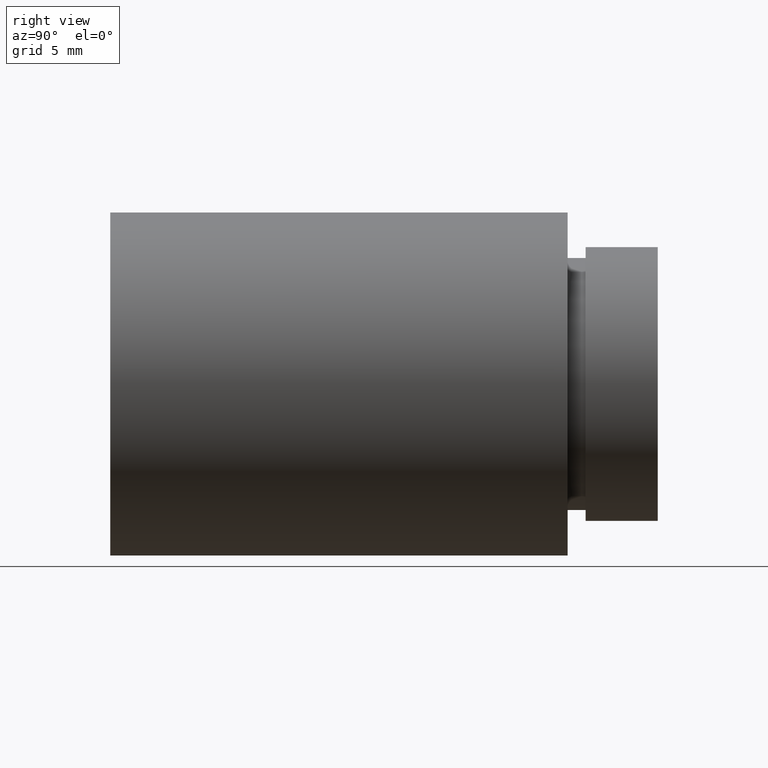
[diagram: clean part render]
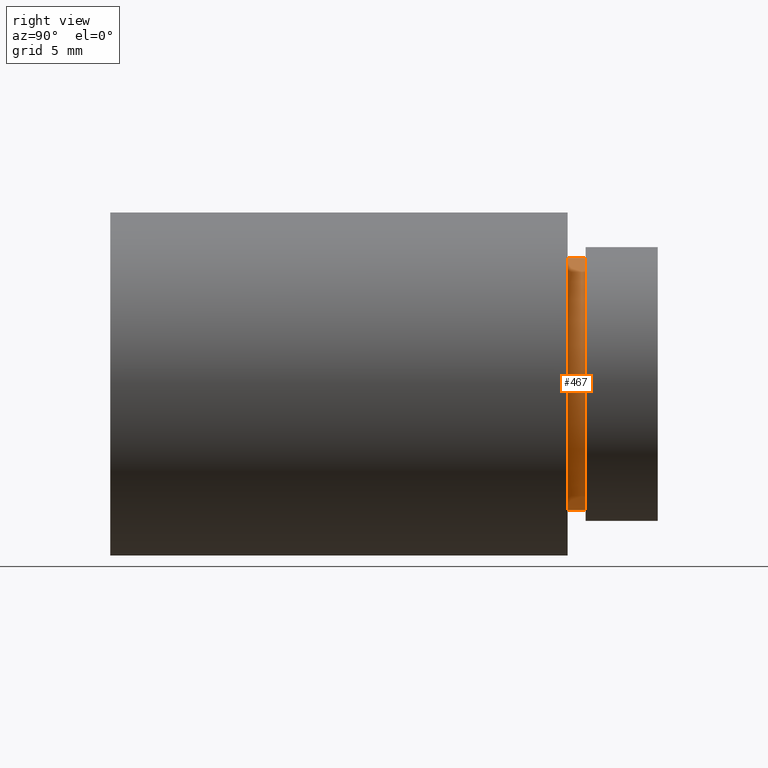
[diagram: same view with one face highlighted and labeled with its STEP entity id]
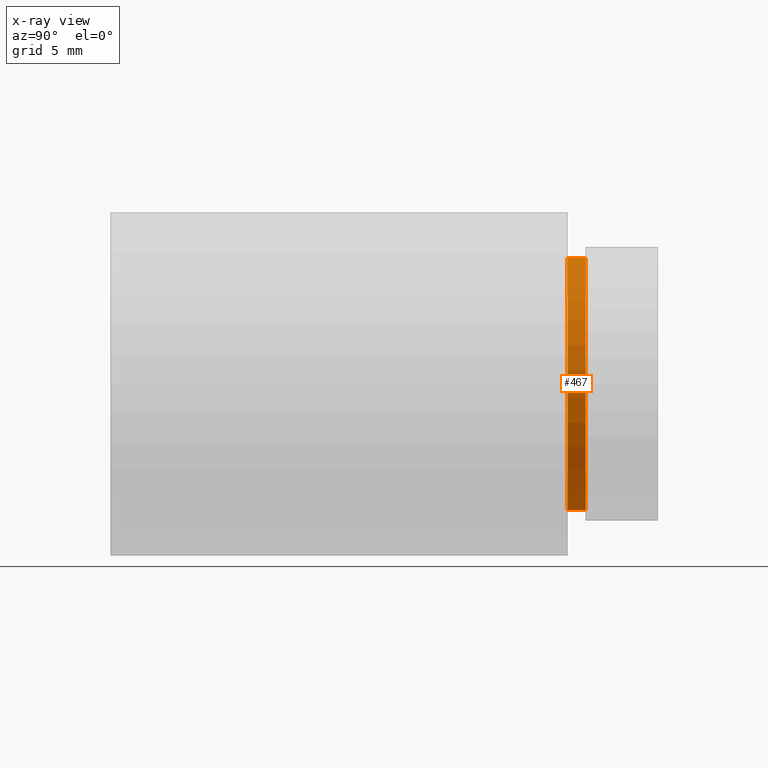
[diagram: x-ray of the same camera — body ghosted, the highlighted face saturated]
A machine part, right view. The second image highlights one B-rep face of the part: STEP entity #467.
The next image is the same camera in x-ray: the body ghosted, the highlighted face saturated — about 0% of this face is hidden behind the body in this view.
In plain terms, the highlighted cylindrical surface (partial cylindrical patch) has radius 7 mm, axis along (-0, 1, -0).
Its self-contained STEP definition (entity closure, byte-faithful):
#1 = ORIENTED_EDGE ( 'NONE', *, *, #303, .T. ) ;
#4 = VECTOR ( 'NONE', #300, 1000.000000000000000 ) ;
#27 = AXIS2_PLACEMENT_3D ( 'NONE', #420, #139, #514 ) ;
#68 = AXIS2_PLACEMENT_3D ( 'NONE', #559, #183, #564 ) ;
#71 = EDGE_CURVE ( 'NONE', #258, #616, #601, .T. ) ;
#102 = ORIENTED_EDGE ( 'NONE', *, *, #71, .T. ) ;
#114 = EDGE_CURVE ( 'NONE', #204, #132, #317, .T. ) ;
#128 = CARTESIAN_POINT ( 'NONE',  ( 0.0000000000000000000, 25.39999999999997700, 7.000000000000015100 ) ) ;
#132 = VERTEX_POINT ( 'NONE', #533 ) ;
#139 = DIRECTION ( 'NONE',  ( -0.0000000000000000000, 1.000000000000000000, -0.0000000000000000000 ) ) ;
#162 = ORIENTED_EDGE ( 'NONE', *, *, #269, .F. ) ;
#183 = DIRECTION ( 'NONE',  ( -0.0000000000000000000, 1.000000000000000000, -0.0000000000000000000 ) ) ;
#193 = CARTESIAN_POINT ( 'NONE',  ( 8.572527594031490900E-016, 26.39999999999997700, -7.000000000000015100 ) ) ;
#204 = VERTEX_POINT ( 'NONE', #128 ) ;
#245 = CIRCLE ( 'NONE', #27, 7.000000000000015100 ) ;
#246 = VECTOR ( 'NONE', #400, 1000.000000000000000 ) ;
#258 = VERTEX_POINT ( 'NONE', #547 ) ;
#269 = EDGE_CURVE ( 'NONE', #132, #616, #245, .T. ) ;
#271 = ORIENTED_EDGE ( 'NONE', *, *, #114, .F. ) ;
#284 = DIRECTION ( 'NONE',  ( 0.0000000000000000000, 0.0000000000000000000, 1.000000000000000000 ) ) ;
#286 = AXIS2_PLACEMENT_3D ( 'NONE', #287, #519, #284 ) ;
#287 = CARTESIAN_POINT ( 'NONE',  ( 0.0000000000000000000, 161.3761669434274500, 0.0000000000000000000 ) ) ;
#298 = CYLINDRICAL_SURFACE ( 'NONE', #286, 7.000000000000015100 ) ;
#300 = DIRECTION ( 'NONE',  ( -0.0000000000000000000, 1.000000000000000000, -0.0000000000000000000 ) ) ;
#303 = EDGE_CURVE ( 'NONE', #204, #258, #598, .T. ) ;
#317 = LINE ( 'NONE', #401, #246 ) ;
#367 = EDGE_LOOP ( 'NONE', ( #1, #102, #162, #271 ) ) ;
#400 = DIRECTION ( 'NONE',  ( -0.0000000000000000000, 1.000000000000000000, -0.0000000000000000000 ) ) ;
#401 = CARTESIAN_POINT ( 'NONE',  ( 0.0000000000000000000, 161.3761669434274500, 7.000000000000015100 ) ) ;
#403 = CARTESIAN_POINT ( 'NONE',  ( 8.572527594031490900E-016, 161.3761669434274500, -7.000000000000015100 ) ) ;
#420 = CARTESIAN_POINT ( 'NONE',  ( 0.0000000000000000000, 26.39999999999997700, 0.0000000000000000000 ) ) ;
#467 = ADVANCED_FACE ( 'NONE', ( #535 ), #298, .T. ) ;
#514 = DIRECTION ( 'NONE',  ( 0.0000000000000000000, 0.0000000000000000000, 1.000000000000000000 ) ) ;
#519 = DIRECTION ( 'NONE',  ( -0.0000000000000000000, 1.000000000000000000, -0.0000000000000000000 ) ) ;
#533 = CARTESIAN_POINT ( 'NONE',  ( 0.0000000000000000000, 26.39999999999997700, 7.000000000000015100 ) ) ;
#535 = FACE_OUTER_BOUND ( 'NONE', #367, .T. ) ;
#547 = CARTESIAN_POINT ( 'NONE',  ( 8.572527594031490900E-016, 25.39999999999997700, -7.000000000000015100 ) ) ;
#559 = CARTESIAN_POINT ( 'NONE',  ( 0.0000000000000000000, 25.39999999999997700, 0.0000000000000000000 ) ) ;
#564 = DIRECTION ( 'NONE',  ( 0.0000000000000000000, 0.0000000000000000000, 1.000000000000000000 ) ) ;
#598 = CIRCLE ( 'NONE', #68, 7.000000000000015100 ) ;
#601 = LINE ( 'NONE', #403, #4 ) ;
#616 = VERTEX_POINT ( 'NONE', #193 ) ;